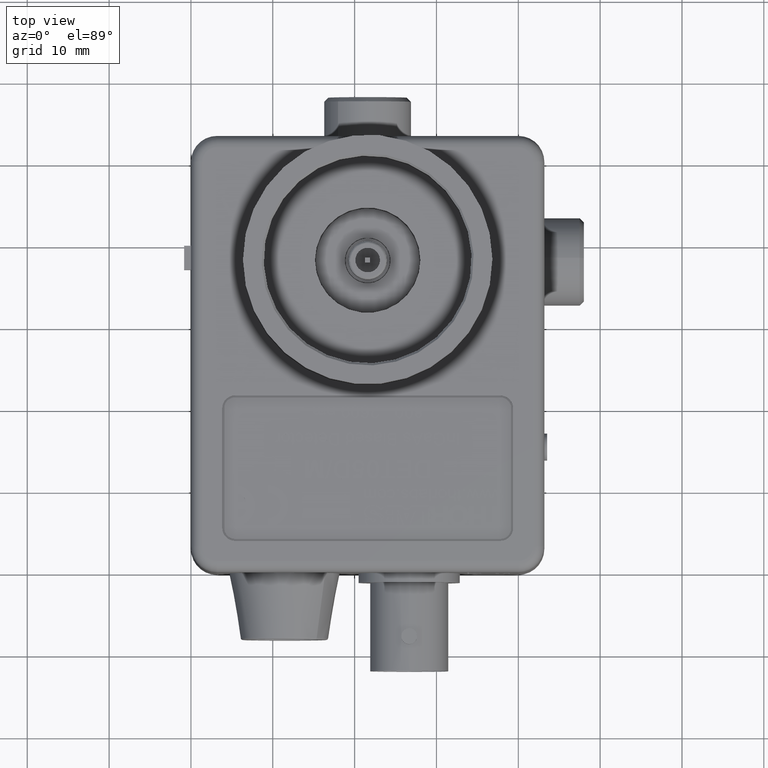
[diagram: clean part render]
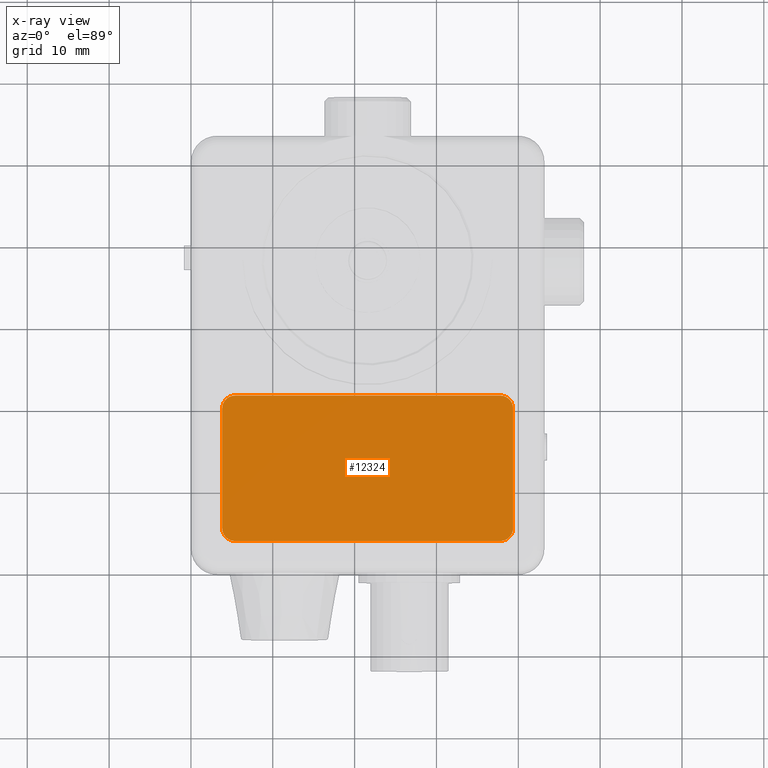
[diagram: x-ray — body ghosted, one internal face saturated and labeled with its STEP entity id]
A machine part, top view, then the same camera in x-ray: the body is ghosted and one INTERNAL B-rep face — a face not visible from any outside direction — is saturated and labeled: STEP entity #12324.
In plain terms, the highlighted planar face has unit normal (0, 0, -1).
Its self-contained STEP definition (entity closure, byte-faithful):
#2845 = CARTESIAN_POINT ( 'NONE',  ( 0.2124999999999999900, 0.1500000000000001900, 0.7299999999999999800 ) ) ;
#3567 = DIRECTION ( 'NONE',  ( 1.000000000000000000, 0.0000000000000000000, 0.0000000000000000000 ) ) ;
#6826 = AXIS2_PLACEMENT_3D ( 'NONE', #125741, #64668, #3567 ) ;
#8508 = CARTESIAN_POINT ( 'NONE',  ( 0.2124999999999999900, 0.2125000000000001900, 0.7299999999999999800 ) ) ;
#9141 = AXIS2_PLACEMENT_3D ( 'NONE', #117739, #56695, #128037 ) ;
#9599 = ORIENTED_EDGE ( 'NONE', *, *, #55206, .T. ) ;
#9822 = EDGE_CURVE ( 'NONE', #19643, #114295, #73148, .T. ) ;
#12324 = ADVANCED_FACE ( 'NONE', ( #87888 ), #28581, .F. ) ;
#13443 = ORIENTED_EDGE ( 'NONE', *, *, #81454, .T. ) ;
#16919 = AXIS2_PLACEMENT_3D ( 'NONE', #58081, #129422, #68393 ) ;
#17895 = VECTOR ( 'NONE', #106244, 39.37007874015748100 ) ;
#18297 = CARTESIAN_POINT ( 'NONE',  ( 1.549999999999999800, 0.2125000000000001900, 0.7299999999999999800 ) ) ;
#18770 = DIRECTION ( 'NONE',  ( -1.000000000000000000, 0.0000000000000000000, 0.0000000000000000000 ) ) ;
#19643 = VERTEX_POINT ( 'NONE', #102164 ) ;
#22822 = CARTESIAN_POINT ( 'NONE',  ( 1.549999999999999800, 0.2125000000000001900, 0.7299999999999999800 ) ) ;
#25848 = ORIENTED_EDGE ( 'NONE', *, *, #55407, .T. ) ;
#28581 = PLANE ( 'NONE',  #37414 ) ;
#29441 = VERTEX_POINT ( 'NONE', #35162 ) ;
#30111 = CARTESIAN_POINT ( 'NONE',  ( 1.487499999999999800, 0.1500000000000001900, 0.7299999999999999800 ) ) ;
#33852 = ORIENTED_EDGE ( 'NONE', *, *, #92321, .T. ) ;
#35162 = CARTESIAN_POINT ( 'NONE',  ( 0.2124999999999999900, 0.8499999999999999800, 0.7299999999999999800 ) ) ;
#37414 = AXIS2_PLACEMENT_3D ( 'NONE', #8508, #79845, #18770 ) ;
#42734 = CARTESIAN_POINT ( 'NONE',  ( 0.2124999999999999900, 0.8499999999999999800, 0.7299999999999999800 ) ) ;
#43299 = VECTOR ( 'NONE', #52984, 39.37007874015748100 ) ;
#45212 = CARTESIAN_POINT ( 'NONE',  ( 1.487499999999999800, 0.1500000000000001900, 0.7299999999999999800 ) ) ;
#45978 = VECTOR ( 'NONE', #48274, 39.37007874015748100 ) ;
#48274 = DIRECTION ( 'NONE',  ( -2.969399993113330200E-017, -1.000000000000000000, -0.0000000000000000000 ) ) ;
#48347 = ORIENTED_EDGE ( 'NONE', *, *, #122488, .T. ) ;
#50225 = CARTESIAN_POINT ( 'NONE',  ( 1.487499999999999600, 0.7875000000000000900, 0.7299999999999999800 ) ) ;
#52984 = DIRECTION ( 'NONE',  ( -1.000000000000000000, -0.0000000000000000000, -0.0000000000000000000 ) ) ;
#54393 = EDGE_CURVE ( 'NONE', #56451, #102989, #93313, .T. ) ;
#55206 = EDGE_CURVE ( 'NONE', #120255, #56451, #60979, .T. ) ;
#55407 = EDGE_CURVE ( 'NONE', #102989, #29441, #124643, .T. ) ;
#55607 = CARTESIAN_POINT ( 'NONE',  ( 0.1499999999999999700, 0.2125000000000001900, 0.7299999999999999800 ) ) ;
#56451 = VERTEX_POINT ( 'NONE', #61638 ) ;
#56695 = DIRECTION ( 'NONE',  ( 0.0000000000000000000, 0.0000000000000000000, 1.000000000000000000 ) ) ;
#57284 = CIRCLE ( 'NONE', #16919, 0.06249999999999995100 ) ;
#58081 = CARTESIAN_POINT ( 'NONE',  ( 1.487499999999999800, 0.2125000000000001900, 0.7299999999999999800 ) ) ;
#59365 = CARTESIAN_POINT ( 'NONE',  ( 1.487499999999999600, 0.8499999999999999800, 0.7299999999999999800 ) ) ;
#60450 = DIRECTION ( 'NONE',  ( -1.000000000000000000, 0.0000000000000000000, 0.0000000000000000000 ) ) ;
#60979 = LINE ( 'NONE', #18297, #88100 ) ;
#61638 = CARTESIAN_POINT ( 'NONE',  ( 1.549999999999999600, 0.7875000000000000900, 0.7299999999999999800 ) ) ;
#63430 = VERTEX_POINT ( 'NONE', #2845 ) ;
#64668 = DIRECTION ( 'NONE',  ( 0.0000000000000000000, 0.0000000000000000000, 1.000000000000000000 ) ) ;
#65514 = EDGE_CURVE ( 'NONE', #114295, #63430, #67203, .T. ) ;
#67203 = CIRCLE ( 'NONE', #9141, 0.06250000000000001400 ) ;
#68393 = DIRECTION ( 'NONE',  ( 1.000000000000000000, 0.0000000000000000000, 0.0000000000000000000 ) ) ;
#71906 = AXIS2_PLACEMENT_3D ( 'NONE', #50225, #121481, #60450 ) ;
#73148 = LINE ( 'NONE', #99506, #45978 ) ;
#74909 = EDGE_LOOP ( 'NONE', ( #121310, #13443, #33852, #9599, #102504, #25848, #48347, #81934 ) ) ;
#79845 = DIRECTION ( 'NONE',  ( -0.0000000000000000000, 0.0000000000000000000, -1.000000000000000000 ) ) ;
#81454 = EDGE_CURVE ( 'NONE', #63430, #131748, #123154, .T. ) ;
#81934 = ORIENTED_EDGE ( 'NONE', *, *, #9822, .T. ) ;
#87888 = FACE_OUTER_BOUND ( 'NONE', #74909, .T. ) ;
#88100 = VECTOR ( 'NONE', #99896, 39.37007874015748100 ) ;
#92321 = EDGE_CURVE ( 'NONE', #131748, #120255, #57284, .T. ) ;
#93313 = CIRCLE ( 'NONE', #71906, 0.06249999999999995100 ) ;
#99506 = CARTESIAN_POINT ( 'NONE',  ( 0.1499999999999999700, 0.2125000000000001900, 0.7299999999999999800 ) ) ;
#99896 = DIRECTION ( 'NONE',  ( -4.751039988981328300E-016, 1.000000000000000000, 0.0000000000000000000 ) ) ;
#102164 = CARTESIAN_POINT ( 'NONE',  ( 0.1500000000000000800, 0.7875000000000000900, 0.7299999999999999800 ) ) ;
#102504 = ORIENTED_EDGE ( 'NONE', *, *, #54393, .T. ) ;
#102989 = VERTEX_POINT ( 'NONE', #59365 ) ;
#106244 = DIRECTION ( 'NONE',  ( 1.000000000000000000, -0.0000000000000000000, -0.0000000000000000000 ) ) ;
#114295 = VERTEX_POINT ( 'NONE', #55607 ) ;
#117739 = CARTESIAN_POINT ( 'NONE',  ( 0.2124999999999999900, 0.2125000000000001900, 0.7299999999999999800 ) ) ;
#120255 = VERTEX_POINT ( 'NONE', #22822 ) ;
#121310 = ORIENTED_EDGE ( 'NONE', *, *, #65514, .T. ) ;
#121481 = DIRECTION ( 'NONE',  ( 0.0000000000000000000, 0.0000000000000000000, 1.000000000000000000 ) ) ;
#122488 = EDGE_CURVE ( 'NONE', #29441, #19643, #131186, .T. ) ;
#123154 = LINE ( 'NONE', #45212, #17895 ) ;
#124643 = LINE ( 'NONE', #42734, #43299 ) ;
#125741 = CARTESIAN_POINT ( 'NONE',  ( 0.2124999999999999900, 0.7875000000000000900, 0.7299999999999999800 ) ) ;
#128037 = DIRECTION ( 'NONE',  ( -1.000000000000000000, 0.0000000000000000000, 0.0000000000000000000 ) ) ;
#129422 = DIRECTION ( 'NONE',  ( 0.0000000000000000000, 0.0000000000000000000, 1.000000000000000000 ) ) ;
#131186 = CIRCLE ( 'NONE', #6826, 0.06249999999999991700 ) ;
#131748 = VERTEX_POINT ( 'NONE', #30111 ) ;